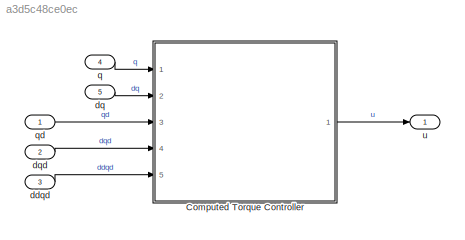
MODEL slx_a3d5c48ce0ec
KIND model
CONFIG AbsTol = auto
CONFIG EnableMultiTasking = off
CONFIG FixedStep = 0.001
CONFIG MaxStep = auto
CONFIG MinStep = auto
CONFIG RelTol = 1e-3
CONFIG SampleTimeConstraint = Unconstrained
CONFIG Solver = FixedStepAuto
CONFIG SolverName = FixedStepAuto
CONFIG StartTime = 0.0
CONFIG StopTime = 10.0
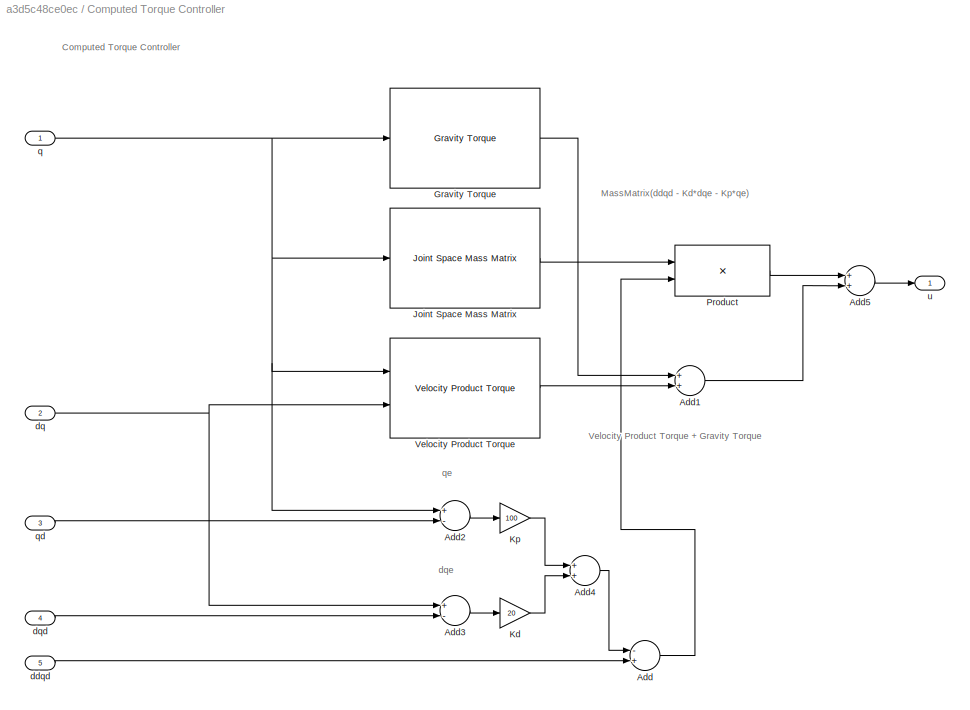
BLOCK [SubSystem] Computed Torque Controller
  Ports = [5, 1]
  RequestExecContextInheritance = off
BLOCK [Sum] Computed Torque Controller/Add
  InputSameDT = off
  Inputs = -+
  OutDataTypeStr = Inherit: Inherit via internal rule
  Ports = [2, 1]
  SaturateOnIntegerOverflow = off
BLOCK [Sum] Computed Torque Controller/Add1
  InputSameDT = off
  OutDataTypeStr = Inherit: Inherit via internal rule
  Ports = [2, 1]
  SaturateOnIntegerOverflow = off
BLOCK [Sum] Computed Torque Controller/Add2
  InputSameDT = off
  Inputs = +-
  OutDataTypeStr = Inherit: Inherit via internal rule
  Ports = [2, 1]
  SaturateOnIntegerOverflow = off
BLOCK [Sum] Computed Torque Controller/Add3
  InputSameDT = off
  Inputs = +-
  OutDataTypeStr = Inherit: Inherit via internal rule
  Ports = [2, 1]
  SaturateOnIntegerOverflow = off
BLOCK [Sum] Computed Torque Controller/Add4
  InputSameDT = off
  OutDataTypeStr = Inherit: Inherit via internal rule
  Ports = [2, 1]
  SaturateOnIntegerOverflow = off
BLOCK [Sum] Computed Torque Controller/Add5
  InputSameDT = off
  OutDataTypeStr = Inherit: Inherit via internal rule
  Ports = [2, 1]
  SaturateOnIntegerOverflow = off
BLOCK [Reference] Computed Torque Controller/Gravity Torque  REF=robotmaniplib/Gravity Torque
  Ports = [1, 1]
  SourceBlock = robotmaniplib/Gravity Torque
  SourceProductName = Robotics System Toolbox
  SourceType = Gravity Torque
BLOCK [Reference] Computed Torque Controller/Joint Space Mass Matrix  REF=robotmaniplib/Joint Space Mass Matrix
  Ports = [1, 1]
  SourceBlock = robotmaniplib/Joint Space Mass Matrix
  SourceProductName = Robotics System Toolbox
  SourceType = Joint Space Mass Matrix
BLOCK [Gain] Computed Torque Controller/Kd
  Gain = 20
  OutDataTypeStr = Inherit: Inherit via internal rule
  ParamDataTypeStr = Inherit: Inherit via internal rule
  SaturateOnIntegerOverflow = off
BLOCK [Gain] Computed Torque Controller/Kp
  Gain = 100
  OutDataTypeStr = Inherit: Inherit via internal rule
  ParamDataTypeStr = Inherit: Inherit via internal rule
  SaturateOnIntegerOverflow = off
BLOCK [Product] Computed Torque Controller/Product
  InputSameDT = off
  Multiplication = Matrix(*)
  OutDataTypeStr = Inherit: Inherit via internal rule
  Ports = [2, 1]
  RndMeth = Floor
  SaturateOnIntegerOverflow = off
BLOCK [Reference] Computed Torque Controller/Velocity Product Torque  REF=robotmaniplib/Velocity Product Torque
  Ports = [2, 1]
  SourceBlock = robotmaniplib/Velocity Product Torque
  SourceProductName = Robotics System Toolbox
  SourceType = Velocity Product Torque
BLOCK [Inport] Computed Torque Controller/ddqd
  IconDisplay = Port number
  Port = 5
BLOCK [Inport] Computed Torque Controller/dq
  IconDisplay = Port number
  Port = 2
BLOCK [Inport] Computed Torque Controller/dqd
  IconDisplay = Port number
  Port = 4
BLOCK [Inport] Computed Torque Controller/q
  IconDisplay = Port number
BLOCK [Inport] Computed Torque Controller/qd
  IconDisplay = Port number
  Port = 3
BLOCK [Outport] Computed Torque Controller/u
  IconDisplay = Port number
BLOCK [Inport] ddqd
  IconDisplay = Port number
  Port = 3
  PortDimensions = 6
BLOCK [Inport] dq
  IconDisplay = Port number
  Port = 5
BLOCK [Inport] dqd
  IconDisplay = Port number
  Port = 2
  PortDimensions = 6
BLOCK [Inport] q
  IconDisplay = Port number
  Port = 4
BLOCK [Inport] qd
  IconDisplay = Port number
  PortDimensions = 6
BLOCK [Outport] u
  IconDisplay = Port number
ANNOTATION Computed Torque Controller: qe
ANNOTATION Computed Torque Controller: MassMatrix(ddqd - Kd*dqe - Kp*qe )
ANNOTATION Computed Torque Controller: Velocity Product Torque + Gravity Torque
ANNOTATION Computed Torque Controller: dqe
ANNOTATION Computed Torque Controller: Computed Torque Controller
LINE Computed Torque Controller/Add1:1 -> Computed Torque Controller/Add5:2
LINE Computed Torque Controller/Add2:1 -> Computed Torque Controller/Kp:1
LINE Computed Torque Controller/Add3:1 -> Computed Torque Controller/Kd:1
LINE Computed Torque Controller/Add4:1 -> Computed Torque Controller/Add:1
LINE Computed Torque Controller/Add5:1 -> Computed Torque Controller/u:1
LINE Computed Torque Controller/Add:1 -> Computed Torque Controller/Product:2
LINE Computed Torque Controller/Gravity Torque:1 -> Computed Torque Controller/Add1:1
LINE Computed Torque Controller/Joint Space Mass Matrix:1 -> Computed Torque Controller/Product:1
LINE Computed Torque Controller/Kd:1 -> Computed Torque Controller/Add4:2
LINE Computed Torque Controller/Kp:1 -> Computed Torque Controller/Add4:1
LINE Computed Torque Controller/Product:1 -> Computed Torque Controller/Add5:1
LINE Computed Torque Controller/Velocity Product Torque:1 -> Computed Torque Controller/Add1:2
LINE Computed Torque Controller/ddqd:1 -> Computed Torque Controller/Add:2
NET Computed Torque Controller/dq:1 -> Computed Torque Controller/Add3:1, Computed Torque Controller/Velocity Product Torque:2
LINE Computed Torque Controller/dqd:1 -> Computed Torque Controller/Add3:2
NET Computed Torque Controller/q:1 -> Computed Torque Controller/Add2:1, Computed Torque Controller/Gravity Torque:1, Computed Torque Controller/Joint Space Mass Matrix:1, Computed Torque Controller/Velocity Product Torque:1
LINE Computed Torque Controller/qd:1 -> Computed Torque Controller/Add2:2
LINE Computed Torque Controller:1 -> u:1
LINE ddqd:1 -> Computed Torque Controller:5
LINE dq:1 -> Computed Torque Controller:2
LINE dqd:1 -> Computed Torque Controller:4
LINE q:1 -> Computed Torque Controller:1
LINE qd:1 -> Computed Torque Controller:3
note: NET lines group one-source signal fan-out (src -> all destinations, sorted); 1:1 wires keep LINE
